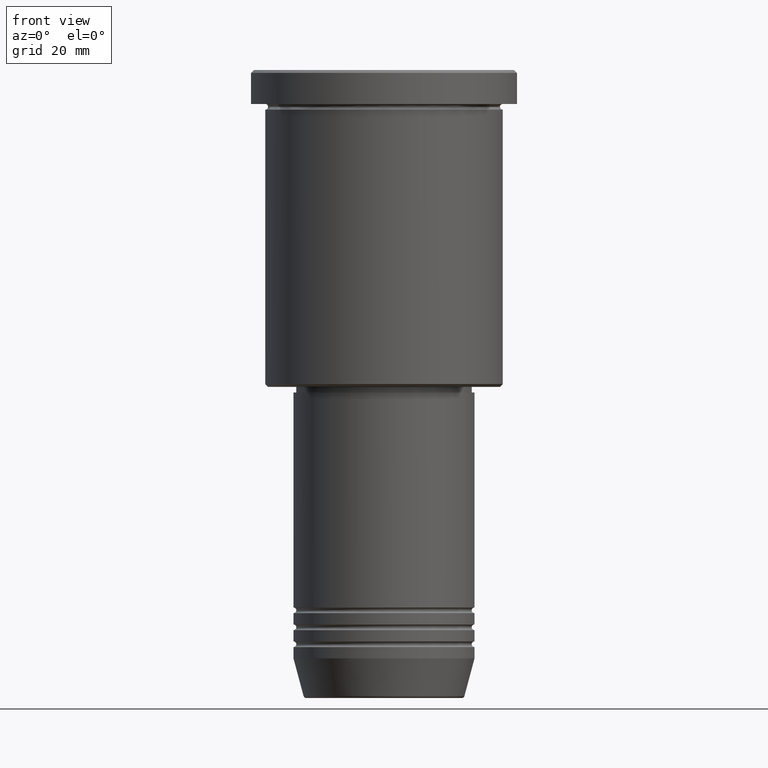
[diagram: clean part render]
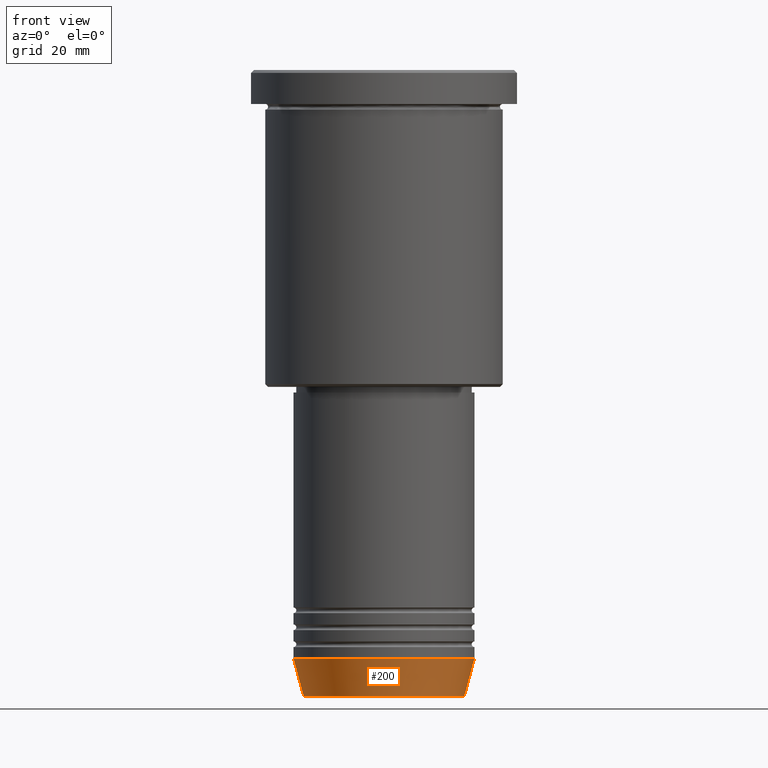
[diagram: same view with one face highlighted and labeled with its STEP entity id]
A machine part, front view. The second image highlights one B-rep face of the part: STEP entity #200.
In plain terms, the highlighted conical surface has half-angle 15 deg.
Its self-contained STEP definition (entity closure, byte-faithful):
#20 = DIRECTION ( 'NONE',  ( -0.000000000000000000, -0.000000000000000000, 1.000000000000000000 ) ) ;
#135 = EDGE_CURVE ( 'NONE', #575, #933, #593, .T. ) ;
#139 = CARTESIAN_POINT ( 'NONE',  ( -16.00000000000000000, 1.959434878635765131E-15, -104.0000000000000142 ) ) ;
#188 = FACE_OUTER_BOUND ( 'NONE', #670, .T. ) ;
#200 = ADVANCED_FACE ( 'NONE', ( #188 ), #563, .T. ) ;
#216 = ORIENTED_EDGE ( 'NONE', *, *, #1161, .T. ) ;
#257 = DIRECTION ( 'NONE',  ( -0.000000000000000000, -0.000000000000000000, 1.000000000000000000 ) ) ;
#271 = CARTESIAN_POINT ( 'NONE',  ( 0.000000000000000000, 0.000000000000000000, -110.6294095225512706 ) ) ;
#289 = CARTESIAN_POINT ( 'NONE',  ( 16.00000000000000000, 0.000000000000000000, -104.0000000000000142 ) ) ;
#361 = CARTESIAN_POINT ( 'NONE',  ( 16.00000000000000000, 0.000000000000000000, -104.0000000000000142 ) ) ;
#367 = ORIENTED_EDGE ( 'NONE', *, *, #375, .F. ) ;
#375 = EDGE_CURVE ( 'NONE', #933, #871, #863, .T. ) ;
#489 = CIRCLE ( 'NONE', #531, 14.22365507213719305 ) ;
#495 = ORIENTED_EDGE ( 'NONE', *, *, #1175, .T. ) ;
#524 = ORIENTED_EDGE ( 'NONE', *, *, #135, .F. ) ;
#531 = AXIS2_PLACEMENT_3D ( 'NONE', #271, #257, #721 ) ;
#563 = CONICAL_SURFACE ( 'NONE', #881, 16.00000000000000000, 0.2617993877991500740 ) ;
#575 = VERTEX_POINT ( 'NONE', #809 ) ;
#588 = DIRECTION ( 'NONE',  ( 1.000000000000000000, 0.000000000000000000, 0.000000000000000000 ) ) ;
#593 = LINE ( 'NONE', #139, #1012 ) ;
#670 = EDGE_LOOP ( 'NONE', ( #524, #216, #495, #367 ) ) ;
#697 = VECTOR ( 'NONE', #1078, 1000.000000000000000 ) ;
#714 = LINE ( 'NONE', #361, #697 ) ;
#721 = DIRECTION ( 'NONE',  ( 1.000000000000000000, 0.000000000000000000, 0.000000000000000000 ) ) ;
#779 = DIRECTION ( 'NONE',  ( -0.2588190451025213501, 3.169619151431772337E-17, 0.9659258262890680902 ) ) ;
#809 = CARTESIAN_POINT ( 'NONE',  ( -14.22365507213719305, 1.850665122131323731E-15, -110.6294095225512706 ) ) ;
#863 = CIRCLE ( 'NONE', #1150, 16.00000000000000000 ) ;
#871 = VERTEX_POINT ( 'NONE', #289 ) ;
#881 = AXIS2_PLACEMENT_3D ( 'NONE', #998, #1082, #1003 ) ;
#885 = CARTESIAN_POINT ( 'NONE',  ( 14.22365507213719305, 0.000000000000000000, -110.6294095225512706 ) ) ;
#929 = CARTESIAN_POINT ( 'NONE',  ( 0.000000000000000000, 0.000000000000000000, -104.0000000000000142 ) ) ;
#933 = VERTEX_POINT ( 'NONE', #1042 ) ;
#998 = CARTESIAN_POINT ( 'NONE',  ( 0.000000000000000000, 0.000000000000000000, -104.0000000000000142 ) ) ;
#1003 = DIRECTION ( 'NONE',  ( 1.000000000000000000, 0.000000000000000000, 0.000000000000000000 ) ) ;
#1012 = VECTOR ( 'NONE', #779, 1000.000000000000000 ) ;
#1042 = CARTESIAN_POINT ( 'NONE',  ( -16.00000000000000000, 1.959434878635765131E-15, -104.0000000000000142 ) ) ;
#1078 = DIRECTION ( 'NONE',  ( 0.2588190451025213501, 0.000000000000000000, 0.9659258262890680902 ) ) ;
#1082 = DIRECTION ( 'NONE',  ( -0.000000000000000000, -0.000000000000000000, 1.000000000000000000 ) ) ;
#1125 = VERTEX_POINT ( 'NONE', #885 ) ;
#1150 = AXIS2_PLACEMENT_3D ( 'NONE', #929, #20, #588 ) ;
#1161 = EDGE_CURVE ( 'NONE', #575, #1125, #489, .T. ) ;
#1175 = EDGE_CURVE ( 'NONE', #1125, #871, #714, .T. ) ;